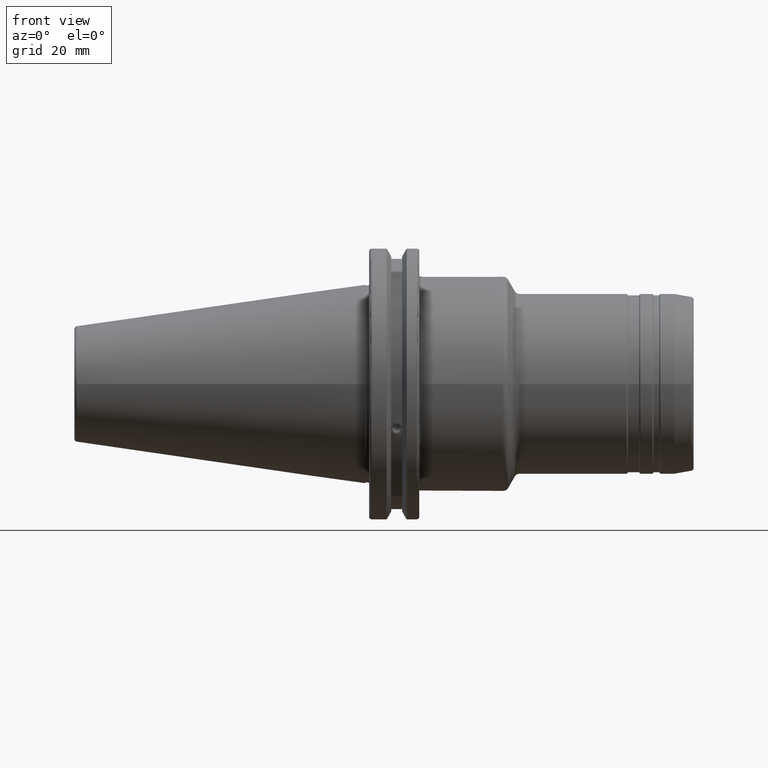
[diagram: clean part render]
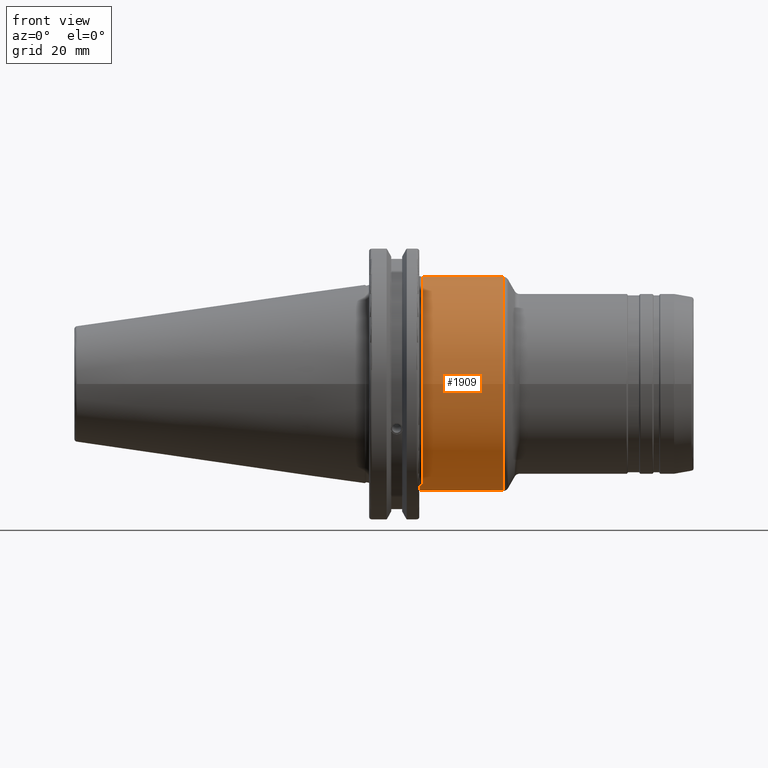
[diagram: same view with one face highlighted and labeled with its STEP entity id]
A machine part, front view. The second image highlights one B-rep face of the part: STEP entity #1909.
In plain terms, the highlighted cylindrical surface (bore or boss wall) has radius 37.5 mm, axis along (1, 0, 0).
Its self-contained STEP definition (entity closure, byte-faithful):
#138=CYLINDRICAL_SURFACE('',#2054,37.5);
#171=LINE('',#2910,#278);
#172=LINE('',#2914,#279);
#173=LINE('',#2918,#280);
#278=VECTOR('',#2320,37.5);
#279=VECTOR('',#2323,10.);
#280=VECTOR('',#2326,10.);
#406=FACE_OUTER_BOUND('',#516,.T.);
#516=EDGE_LOOP('',(#1302,#1303,#1304,#1305,#1306,#1307,#1308,#1309,#1310));
#649=CIRCLE('',#2052,37.5);
#650=CIRCLE('',#2053,37.5);
#651=CIRCLE('',#2055,37.5);
#652=CIRCLE('',#2056,37.5);
#653=CIRCLE('',#2057,37.5);
#779=VERTEX_POINT('',#2903);
#780=VERTEX_POINT('',#2905);
#781=VERTEX_POINT('',#2909);
#782=VERTEX_POINT('',#2911);
#783=VERTEX_POINT('',#2913);
#784=VERTEX_POINT('',#2915);
#785=VERTEX_POINT('',#2917);
#986=EDGE_CURVE('',#779,#780,#649,.T.);
#987=EDGE_CURVE('',#780,#779,#650,.T.);
#988=EDGE_CURVE('',#780,#781,#171,.T.);
#989=EDGE_CURVE('',#782,#781,#651,.T.);
#990=EDGE_CURVE('',#782,#783,#172,.T.);
#991=EDGE_CURVE('',#783,#784,#652,.T.);
#992=EDGE_CURVE('',#784,#785,#173,.T.);
#993=EDGE_CURVE('',#781,#785,#653,.T.);
#1302=ORIENTED_EDGE('',*,*,#987,.F.);
#1303=ORIENTED_EDGE('',*,*,#988,.T.);
#1304=ORIENTED_EDGE('',*,*,#989,.F.);
#1305=ORIENTED_EDGE('',*,*,#990,.T.);
#1306=ORIENTED_EDGE('',*,*,#991,.T.);
#1307=ORIENTED_EDGE('',*,*,#992,.T.);
#1308=ORIENTED_EDGE('',*,*,#993,.F.);
#1309=ORIENTED_EDGE('',*,*,#988,.F.);
#1310=ORIENTED_EDGE('',*,*,#986,.F.);
#1909=ADVANCED_FACE('',(#406),#138,.T.);
#2052=AXIS2_PLACEMENT_3D('',#2906,#2314,#2315);
#2053=AXIS2_PLACEMENT_3D('',#2907,#2316,#2317);
#2054=AXIS2_PLACEMENT_3D('',#2908,#2318,#2319);
#2055=AXIS2_PLACEMENT_3D('',#2912,#2321,#2322);
#2056=AXIS2_PLACEMENT_3D('',#2916,#2324,#2325);
#2057=AXIS2_PLACEMENT_3D('',#2919,#2327,#2328);
#2314=DIRECTION('center_axis',(1.,0.,0.));
#2315=DIRECTION('ref_axis',(0.,-1.,1.83697019872103E-16));
#2316=DIRECTION('center_axis',(1.,0.,0.));
#2317=DIRECTION('ref_axis',(0.,-1.,1.83697019872103E-16));
#2318=DIRECTION('center_axis',(1.,0.,0.));
#2319=DIRECTION('ref_axis',(0.,1.,0.));
#2320=DIRECTION('',(-1.,0.,0.));
#2321=DIRECTION('center_axis',(-1.,0.,0.));
#2322=DIRECTION('ref_axis',(0.,2.83276944882399E-16,1.));
#2323=DIRECTION('',(-1.,0.,0.));
#2324=DIRECTION('center_axis',(1.,0.,0.));
#2325=DIRECTION('ref_axis',(0.,0.,-1.));
#2326=DIRECTION('',(1.,0.,0.));
#2327=DIRECTION('center_axis',(-1.,0.,0.));
#2328=DIRECTION('ref_axis',(0.,2.83276944882399E-16,1.));
#2903=CARTESIAN_POINT('',(48.381197846483,-4.59242549680258E-15,37.5));
#2905=CARTESIAN_POINT('',(48.381197846483,-37.5,-4.59242549680258E-15));
#2906=CARTESIAN_POINT('Origin',(48.381197846483,0.,0.));
#2907=CARTESIAN_POINT('Origin',(48.381197846483,0.,0.));
#2908=CARTESIAN_POINT('Origin',(34.2929491924311,0.,0.));
#2909=CARTESIAN_POINT('',(20.05,-37.5,-4.59242549680258E-15));
#2910=CARTESIAN_POINT('',(34.2929491924311,-37.5,-4.59242549680258E-15));
#2911=CARTESIAN_POINT('',(20.05,-12.4995116967895,-35.3555116967895));
#2912=CARTESIAN_POINT('Origin',(20.05,0.,0.));
#2913=CARTESIAN_POINT('',(19.05,-12.4995116967895,-35.3555116967895));
#2914=CARTESIAN_POINT('',(34.2929491924311,-12.4995116967895,-35.3555116967895));
#2915=CARTESIAN_POINT('',(19.05,12.4995116967895,-35.3555116967895));
#2916=CARTESIAN_POINT('Origin',(19.05,0.,0.));
#2917=CARTESIAN_POINT('',(20.05,12.4995116967895,-35.3555116967895));
#2918=CARTESIAN_POINT('',(34.2929491924311,12.4995116967895,-35.3555116967895));
#2919=CARTESIAN_POINT('Origin',(20.05,0.,0.));